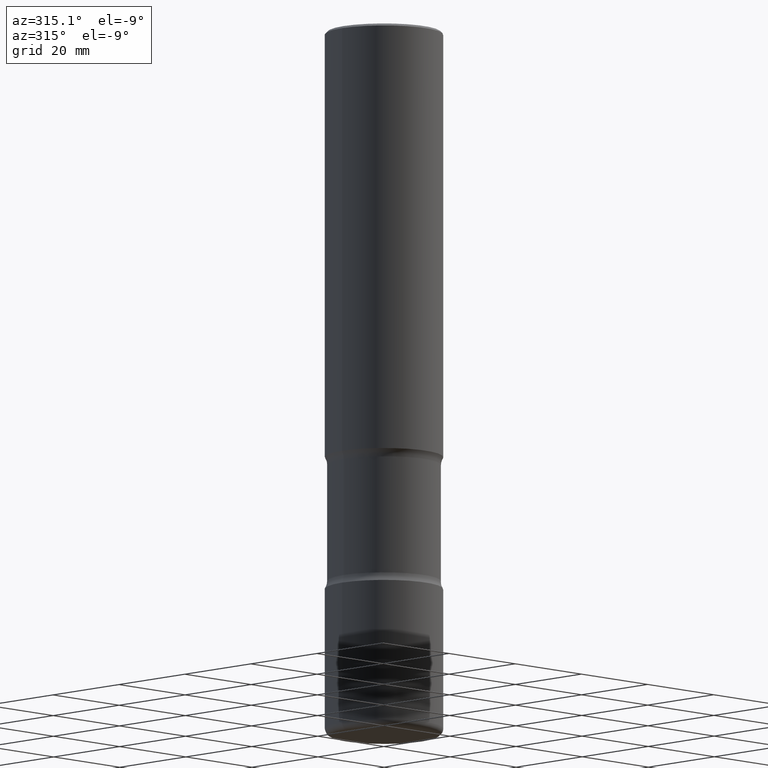
[diagram: clean part render]
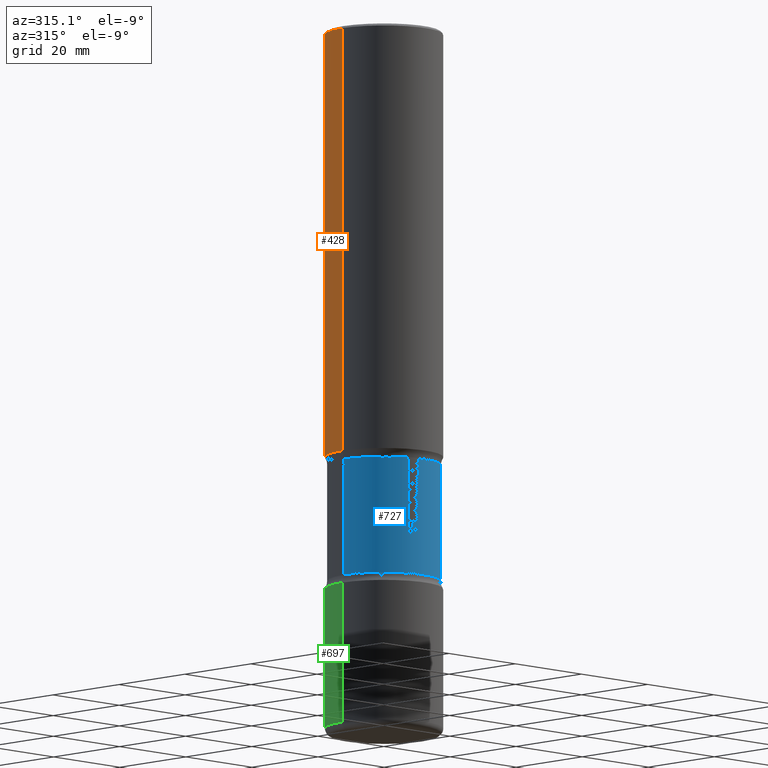
[diagram: same view with three faces highlighted in distinct colors, each labeled with its STEP entity id]
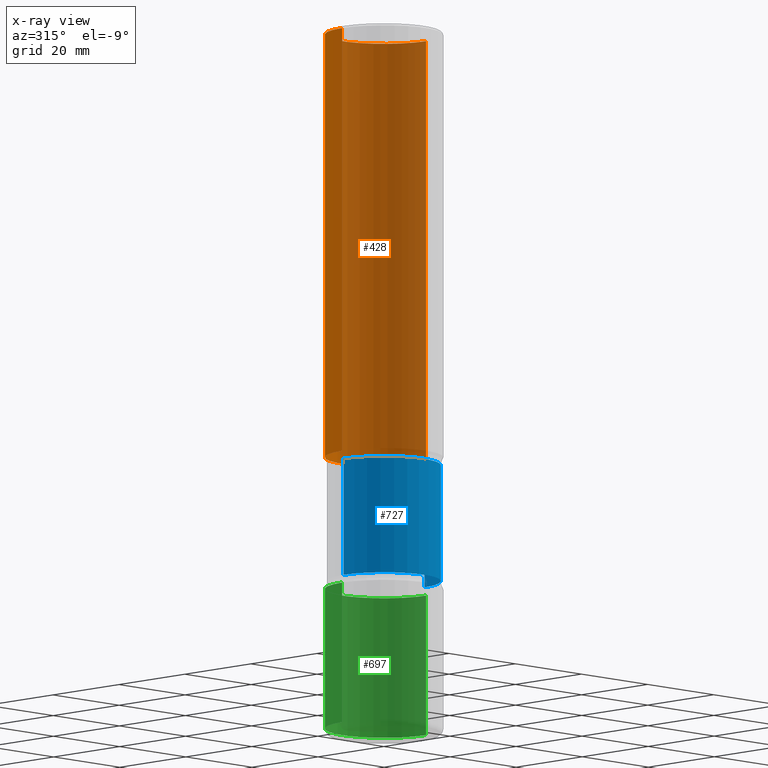
[diagram: x-ray of the same camera — body ghosted, the three highlighted faces saturated]
A machine part, auxiliary view with three faces highlighted in distinct colors.
The next image is the same camera in x-ray (body ghosted, the three faces saturated) — at least one of them is partly hidden behind the body in this view.
Their STEP definitions:

[orange] entity #428 — the highlighted cylindrical surface (partial cylindrical patch) has radius 12.7 mm, axis along (-0, 0, 1).
#2 = DIRECTION ( 'NONE',  ( -2.445468806185136877E-29, 3.491481338843145188E-15, 1.000000000000000000 ) ) ;
#6 = VECTOR ( 'NONE', #91, 39.37007874015748143 ) ;
#16 = EDGE_CURVE ( 'NONE', #723, #236, #380, .T. ) ;
#25 = EDGE_CURVE ( 'NONE', #494, #723, #437, .T. ) ;
#29 = EDGE_LOOP ( 'NONE', ( #607, #663, #432, #733 ) ) ;
#61 = CARTESIAN_POINT ( 'NONE',  ( 4.890937612370299433E-31, -6.982962677686328587E-17, -0.02000000000000010797 ) ) ;
#63 = EDGE_CURVE ( 'NONE', #355, #236, #643, .T. ) ;
#76 = DIRECTION ( 'NONE',  ( -2.445468806185136597E-29, 3.491481338843145583E-15, 1.000000000000000000 ) ) ;
#79 = FACE_OUTER_BOUND ( 'NONE', #29, .T. ) ;
#80 = CARTESIAN_POINT ( 'NONE',  ( -0.4999999999999997780, 3.552713678800499352E-15, -2.459467545127452050E-29 ) ) ;
#91 = DIRECTION ( 'NONE',  ( -2.445468806185136877E-29, 3.491481338843145188E-15, 1.000000000000000000 ) ) ;
#108 = CARTESIAN_POINT ( 'NONE',  ( -0.4999999999999996114, 3.421651712066267296E-15, -0.02000000000000010797 ) ) ;
#180 = CARTESIAN_POINT ( 'NONE',  ( 8.864824422421122405E-29, -1.265661985330640574E-14, -3.625000000000000888 ) ) ;
#193 = DIRECTION ( 'NONE',  ( -2.445468806185136597E-29, 3.491481338843145583E-15, 1.000000000000000000 ) ) ;
#236 = VERTEX_POINT ( 'NONE', #108 ) ;
#314 = DIRECTION ( 'NONE',  ( 1.000000000000000000, -6.982962677686266711E-15, 0.000000000000000000 ) ) ;
#329 = CARTESIAN_POINT ( 'NONE',  ( 0.000000000000000000, 0.000000000000000000, 0.000000000000000000 ) ) ;
#355 = VERTEX_POINT ( 'NONE', #396 ) ;
#372 = CARTESIAN_POINT ( 'NONE',  ( 0.5000000000000000000, -1.614810119214954068E-14, -3.625000000000000888 ) ) ;
#380 = CIRCLE ( 'NONE', #565, 0.4999999999999996114 ) ;
#395 = AXIS2_PLACEMENT_3D ( 'NONE', #329, #76, #633 ) ;
#396 = CARTESIAN_POINT ( 'NONE',  ( -0.5000000000000000000, -2.810511061241131620E-15, -3.625000000000000888 ) ) ;
#428 = ADVANCED_FACE ( 'NONE', ( #79 ), #699, .T. ) ;
#432 = ORIENTED_EDGE ( 'NONE', *, *, #16, .F. ) ;
#437 = LINE ( 'NONE', #560, #554 ) ;
#454 = AXIS2_PLACEMENT_3D ( 'NONE', #180, #540, #605 ) ;
#494 = VERTEX_POINT ( 'NONE', #372 ) ;
#540 = DIRECTION ( 'NONE',  ( -2.445468806185136597E-29, 3.491481338843145583E-15, 1.000000000000000000 ) ) ;
#554 = VECTOR ( 'NONE', #2, 39.37007874015748143 ) ;
#560 = CARTESIAN_POINT ( 'NONE',  ( 0.4999999999999997780, -3.491481338843131778E-15, 2.438088387897966775E-29 ) ) ;
#565 = AXIS2_PLACEMENT_3D ( 'NONE', #61, #193, #314 ) ;
#605 = DIRECTION ( 'NONE',  ( 1.000000000000000000, -6.982962677686266711E-15, 0.000000000000000000 ) ) ;
#607 = ORIENTED_EDGE ( 'NONE', *, *, #791, .T. ) ;
#633 = DIRECTION ( 'NONE',  ( 1.000000000000000000, -6.982962677686266711E-15, 4.876176775795935793E-29 ) ) ;
#643 = LINE ( 'NONE', #80, #6 ) ;
#663 = ORIENTED_EDGE ( 'NONE', *, *, #63, .T. ) ;
#668 = CARTESIAN_POINT ( 'NONE',  ( 0.4999999999999996114, -3.500078625662626318E-15, -0.02000000000000010797 ) ) ;
#699 = CYLINDRICAL_SURFACE ( 'NONE', #395, 0.4999999999999997780 ) ;
#721 = CIRCLE ( 'NONE', #454, 0.5000000000000000000 ) ;
#723 = VERTEX_POINT ( 'NONE', #668 ) ;
#733 = ORIENTED_EDGE ( 'NONE', *, *, #25, .F. ) ;
#791 = EDGE_CURVE ( 'NONE', #494, #355, #721, .T. ) ;

[blue] entity #727 — the highlighted cylindrical surface (partial cylindrical patch) has radius 12.192 mm, axis along (-0, 0, 1).
#10 = CARTESIAN_POINT ( 'NONE',  ( 0.4799999999999999267, -1.969955465909476825E-14, -4.682176700168747985 ) ) ;
#31 = EDGE_CURVE ( 'NONE', #492, #473, #640, .T. ) ;
#54 = FACE_OUTER_BOUND ( 'NONE', #535, .T. ) ;
#107 = CYLINDRICAL_SURFACE ( 'NONE', #231, 0.4799999999999998712 ) ;
#136 = CARTESIAN_POINT ( 'NONE',  ( -0.4799999999999999267, -1.298447506143066159E-14, -4.682176700168747985 ) ) ;
#139 = CARTESIAN_POINT ( 'NONE',  ( 9.030684186490993510E-29, -1.289342363900598922E-14, -3.692823299831254236 ) ) ;
#146 = CARTESIAN_POINT ( 'NONE',  ( 1.145011706530952997E-28, -1.634773257380536149E-14, -4.682176700168747985 ) ) ;
#200 = DIRECTION ( 'NONE',  ( 1.000000000000000000, -6.982962677686265133E-15, 0.000000000000000000 ) ) ;
#219 = DIRECTION ( 'NONE',  ( -2.445468806185136877E-29, 3.491481338843145188E-15, 1.000000000000000000 ) ) ;
#231 = AXIS2_PLACEMENT_3D ( 'NONE', #286, #353, #800 ) ;
#244 = VECTOR ( 'NONE', #343, 39.37007874015748143 ) ;
#254 = DIRECTION ( 'NONE',  ( -2.445468806185136597E-29, 3.491481338843145583E-15, 1.000000000000000000 ) ) ;
#279 = CARTESIAN_POINT ( 'NONE',  ( -0.4799999999999998712, -9.246014721657926556E-15, -3.625000000000000888 ) ) ;
#286 = CARTESIAN_POINT ( 'NONE',  ( 8.864824422421122405E-29, -1.265661985330640574E-14, -3.625000000000000888 ) ) ;
#315 = ORIENTED_EDGE ( 'NONE', *, *, #547, .F. ) ;
#317 = VERTEX_POINT ( 'NONE', #362 ) ;
#343 = DIRECTION ( 'NONE',  ( -2.445468806185136877E-29, 3.491481338843145188E-15, 1.000000000000000000 ) ) ;
#353 = DIRECTION ( 'NONE',  ( -2.445468806185136597E-29, 3.491481338843145583E-15, 1.000000000000000000 ) ) ;
#362 = CARTESIAN_POINT ( 'NONE',  ( -0.4799999999999998157, -9.293362340931705846E-15, -3.692823299831254236 ) ) ;
#392 = LINE ( 'NONE', #594, #749 ) ;
#402 = LINE ( 'NONE', #279, #244 ) ;
#410 = EDGE_CURVE ( 'NONE', #317, #411, #555, .T. ) ;
#411 = VERTEX_POINT ( 'NONE', #568 ) ;
#473 = VERTEX_POINT ( 'NONE', #10 ) ;
#492 = VERTEX_POINT ( 'NONE', #136 ) ;
#535 = EDGE_LOOP ( 'NONE', ( #315, #590, #778, #604 ) ) ;
#539 = AXIS2_PLACEMENT_3D ( 'NONE', #139, #696, #764 ) ;
#547 = EDGE_CURVE ( 'NONE', #492, #317, #402, .T. ) ;
#555 = CIRCLE ( 'NONE', #539, 0.4799999999999998157 ) ;
#568 = CARTESIAN_POINT ( 'NONE',  ( 0.4799999999999998157, -1.624524572429539598E-14, -3.692823299831254236 ) ) ;
#576 = AXIS2_PLACEMENT_3D ( 'NONE', #146, #254, #200 ) ;
#590 = ORIENTED_EDGE ( 'NONE', *, *, #31, .T. ) ;
#594 = CARTESIAN_POINT ( 'NONE',  ( 0.4799999999999998712, -1.600844193859581408E-14, -3.625000000000000888 ) ) ;
#604 = ORIENTED_EDGE ( 'NONE', *, *, #410, .F. ) ;
#618 = EDGE_CURVE ( 'NONE', #473, #411, #392, .T. ) ;
#640 = CIRCLE ( 'NONE', #576, 0.4799999999999999267 ) ;
#696 = DIRECTION ( 'NONE',  ( -2.445468806185136597E-29, 3.491481338843145583E-15, 1.000000000000000000 ) ) ;
#727 = ADVANCED_FACE ( 'NONE', ( #54 ), #107, .T. ) ;
#749 = VECTOR ( 'NONE', #219, 39.37007874015748143 ) ;
#764 = DIRECTION ( 'NONE',  ( 1.000000000000000000, -6.982962677686266711E-15, 0.000000000000000000 ) ) ;
#778 = ORIENTED_EDGE ( 'NONE', *, *, #618, .T. ) ;
#800 = DIRECTION ( 'NONE',  ( 1.000000000000000000, -6.982962677686265922E-15, 0.000000000000000000 ) ) ;

[green] entity #697 — the highlighted cylindrical surface (partial cylindrical patch) has radius 12.7 mm, axis along (-0, 0, 1).
#28 = CARTESIAN_POINT ( 'NONE',  ( 0.5000000000000000000, -2.007601769834807675E-14, -4.750000000000000000 ) ) ;
#57 = VECTOR ( 'NONE', #636, 39.37007874015748143 ) ;
#81 = CARTESIAN_POINT ( 'NONE',  ( -0.5000000000000000000, -1.718668547392778504E-14, -5.940000000000000391 ) ) ;
#101 = ORIENTED_EDGE ( 'NONE', *, *, #722, .T. ) ;
#151 = EDGE_CURVE ( 'NONE', #164, #661, #784, .T. ) ;
#164 = VERTEX_POINT ( 'NONE', #28 ) ;
#170 = DIRECTION ( 'NONE',  ( -2.445468806185136597E-29, 3.491481338843145583E-15, 1.000000000000000000 ) ) ;
#224 = DIRECTION ( 'NONE',  ( 1.000000000000000000, -6.982962677686270655E-15, 0.000000000000000000 ) ) ;
#283 = CARTESIAN_POINT ( 'NONE',  ( 1.452608470873971255E-28, -2.073939915272828597E-14, -5.940000000000000391 ) ) ;
#301 = CARTESIAN_POINT ( 'NONE',  ( 0.5000000000000000000, -2.423088049157142248E-14, -5.940000000000000391 ) ) ;
#305 = ORIENTED_EDGE ( 'NONE', *, *, #426, .F. ) ;
#322 = VECTOR ( 'NONE', #734, 39.37007874015748143 ) ;
#326 = CARTESIAN_POINT ( 'NONE',  ( 0.5000000000000000000, -3.491481338843133355E-15, 2.438088387897967896E-29 ) ) ;
#365 = CARTESIAN_POINT ( 'NONE',  ( 0.000000000000000000, 0.000000000000000000, 0.000000000000000000 ) ) ;
#412 = CYLINDRICAL_SURFACE ( 'NONE', #644, 0.5000000000000000000 ) ;
#421 = AXIS2_PLACEMENT_3D ( 'NONE', #700, #648, #578 ) ;
#426 = EDGE_CURVE ( 'NONE', #717, #164, #456, .T. ) ;
#427 = ORIENTED_EDGE ( 'NONE', *, *, #637, .T. ) ;
#436 = CIRCLE ( 'NONE', #738, 0.5000000000000000000 ) ;
#456 = LINE ( 'NONE', #326, #57 ) ;
#488 = VERTEX_POINT ( 'NONE', #81 ) ;
#490 = LINE ( 'NONE', #659, #322 ) ;
#516 = CARTESIAN_POINT ( 'NONE',  ( -0.5000000000000000000, -1.510925407731611217E-14, -4.750000000000000000 ) ) ;
#578 = DIRECTION ( 'NONE',  ( 1.000000000000000000, -6.982962677686266711E-15, 0.000000000000000000 ) ) ;
#615 = ORIENTED_EDGE ( 'NONE', *, *, #151, .F. ) ;
#636 = DIRECTION ( 'NONE',  ( -2.445468806185136877E-29, 3.491481338843145188E-15, 1.000000000000000000 ) ) ;
#637 = EDGE_CURVE ( 'NONE', #717, #488, #436, .T. ) ;
#644 = AXIS2_PLACEMENT_3D ( 'NONE', #365, #170, #729 ) ;
#648 = DIRECTION ( 'NONE',  ( -2.445468806185136597E-29, 3.491481338843145583E-15, 1.000000000000000000 ) ) ;
#659 = CARTESIAN_POINT ( 'NONE',  ( -0.5000000000000000000, 3.552713678800500929E-15, -2.459467545127452891E-29 ) ) ;
#661 = VERTEX_POINT ( 'NONE', #516 ) ;
#671 = FACE_OUTER_BOUND ( 'NONE', #672, .T. ) ;
#672 = EDGE_LOOP ( 'NONE', ( #427, #101, #615, #305 ) ) ;
#697 = ADVANCED_FACE ( 'NONE', ( #671 ), #412, .T. ) ;
#700 = CARTESIAN_POINT ( 'NONE',  ( 1.161597682937940108E-28, -1.658453635950494339E-14, -4.750000000000000000 ) ) ;
#717 = VERTEX_POINT ( 'NONE', #301 ) ;
#722 = EDGE_CURVE ( 'NONE', #488, #661, #490, .T. ) ;
#729 = DIRECTION ( 'NONE',  ( 1.000000000000000000, -6.982962677686266711E-15, 4.876176775795935793E-29 ) ) ;
#734 = DIRECTION ( 'NONE',  ( -2.445468806185136877E-29, 3.491481338843145188E-15, 1.000000000000000000 ) ) ;
#738 = AXIS2_PLACEMENT_3D ( 'NONE', #283, #779, #224 ) ;
#779 = DIRECTION ( 'NONE',  ( -2.445468806185136597E-29, 3.491481338843145583E-15, 1.000000000000000000 ) ) ;
#784 = CIRCLE ( 'NONE', #421, 0.5000000000000000000 ) ;